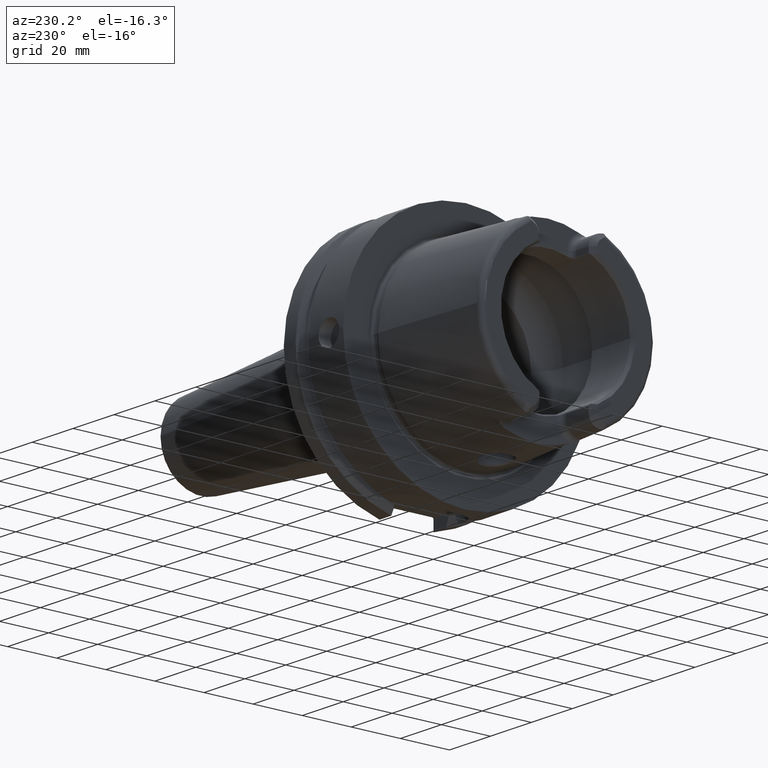
[diagram: clean part render]
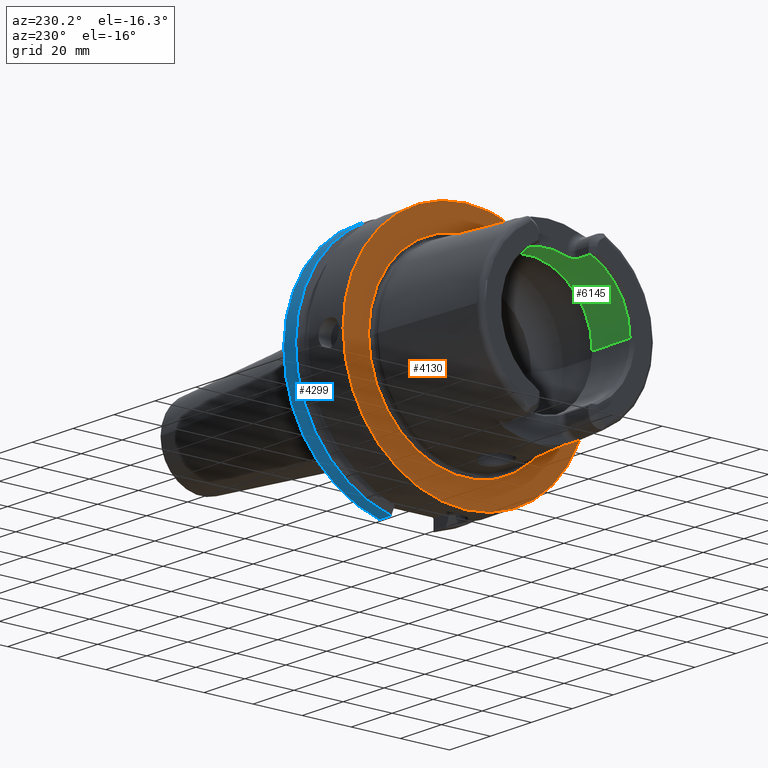
[diagram: same view with three faces highlighted in distinct colors, each labeled with its STEP entity id]
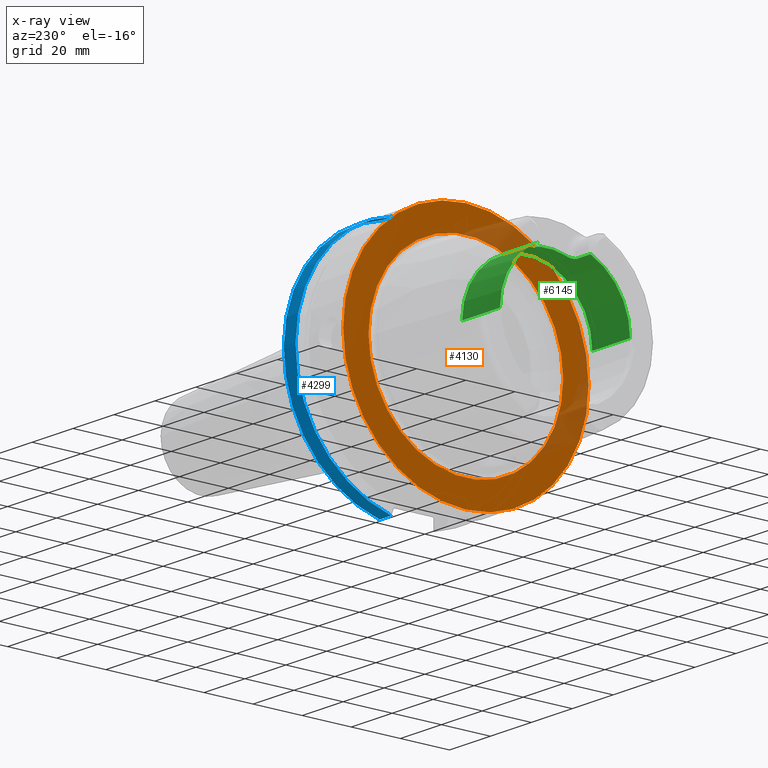
[diagram: x-ray of the same camera — body ghosted, the three highlighted faces saturated]
A machine part, auxiliary view with three faces highlighted in distinct colors.
The next image is the same camera in x-ray (body ghosted, the three faces saturated) — at least one of them is partly hidden behind the body in this view.
Their STEP definitions:

[orange] entity #4130 — the highlighted planar face has unit normal (1, 0, 0).
#905=CARTESIAN_POINT('',(2.842170943040E-14,0.E0,0.E0));
#906=DIRECTION('',(1.E0,0.E0,0.E0));
#907=DIRECTION('',(0.E0,1.E0,0.E0));
#908=AXIS2_PLACEMENT_3D('',#905,#906,#907);
#910=CARTESIAN_POINT('',(2.842170943040E-14,0.E0,0.E0));
#911=DIRECTION('',(-1.E0,0.E0,0.E0));
#912=DIRECTION('',(0.E0,1.E0,0.E0));
#913=AXIS2_PLACEMENT_3D('',#910,#911,#912);
#915=CARTESIAN_POINT('',(0.E0,0.E0,0.E0));
#916=DIRECTION('',(-1.E0,0.E0,0.E0));
#917=DIRECTION('',(0.E0,-1.E0,0.E0));
#918=AXIS2_PLACEMENT_3D('',#915,#916,#917);
#920=CARTESIAN_POINT('',(0.E0,0.E0,0.E0));
#921=DIRECTION('',(-1.E0,0.E0,0.E0));
#922=DIRECTION('',(0.E0,1.E0,0.E0));
#923=AXIS2_PLACEMENT_3D('',#920,#921,#922);
#2693=CARTESIAN_POINT('',(2.842170943040E-14,5.E1,0.E0));
#2694=CARTESIAN_POINT('',(2.842170943040E-14,-5.E1,0.E0));
#2695=VERTEX_POINT('',#2693);
#2696=VERTEX_POINT('',#2694);
#2721=CARTESIAN_POINT('',(0.E0,-3.963225E1,0.E0));
#2722=VERTEX_POINT('',#2721);
#2723=CARTESIAN_POINT('',(0.E0,3.963225E1,0.E0));
#2724=VERTEX_POINT('',#2723);
#4115=CARTESIAN_POINT('',(0.E0,0.E0,0.E0));
#4116=DIRECTION('',(1.E0,0.E0,0.E0));
#4117=DIRECTION('',(0.E0,-1.E0,0.E0));
#4118=AXIS2_PLACEMENT_3D('',#4115,#4116,#4117);
#4119=PLANE('',#4118);
#4121=ORIENTED_EDGE('',*,*,#4120,.T.);
#4123=ORIENTED_EDGE('',*,*,#4122,.F.);
#4124=EDGE_LOOP('',(#4121,#4123));
#4125=FACE_OUTER_BOUND('',#4124,.F.);
#4126=ORIENTED_EDGE('',*,*,#4110,.T.);
#4127=ORIENTED_EDGE('',*,*,#4094,.T.);
#4128=EDGE_LOOP('',(#4126,#4127));
#4129=FACE_BOUND('',#4128,.F.);
#4130=ADVANCED_FACE('',(#4125,#4129),#4119,.F.);
#909=CIRCLE('',#908,5.E1);
#914=CIRCLE('',#913,5.E1);
#919=CIRCLE('',#918,3.963225E1);
#924=CIRCLE('',#923,3.963225E1);
#4094=EDGE_CURVE('',#2724,#2722,#924,.T.);
#4110=EDGE_CURVE('',#2722,#2724,#919,.T.);
#4120=EDGE_CURVE('',#2695,#2696,#909,.T.);
#4122=EDGE_CURVE('',#2695,#2696,#914,.T.);

[blue] entity #4299 — the highlighted cylindrical surface (partial cylindrical patch) has radius 50 mm, axis along (1, 0, 0).
#1110=DIRECTION('',(1.E0,0.E0,0.E0));
#1111=VECTOR('',#1110,5.752404735808E0);
#1112=CARTESIAN_POINT('',(2.324759526419E1,1.1E1,-4.877499359303E1));
#1113=LINE('',#1112,#1111);
#1114=CARTESIAN_POINT('',(2.9E1,0.E0,0.E0));
#1115=DIRECTION('',(1.E0,0.E0,0.E0));
#1116=DIRECTION('',(0.E0,2.2E-1,-9.754998718606E-1));
#1117=AXIS2_PLACEMENT_3D('',#1114,#1115,#1116);
#1119=DIRECTION('',(1.E0,0.E0,0.E0));
#1120=VECTOR('',#1119,5.752404735808E0);
#1121=CARTESIAN_POINT('',(2.324759526419E1,1.E1,4.898979485566E1));
#1122=LINE('',#1121,#1120);
#1653=CARTESIAN_POINT('',(2.324759526419E1,0.E0,0.E0));
#1654=DIRECTION('',(1.E0,0.E0,0.E0));
#1655=DIRECTION('',(0.E0,2.2E-1,-9.754998718606E-1));
#1656=AXIS2_PLACEMENT_3D('',#1653,#1654,#1655);
#1663=CARTESIAN_POINT('',(2.324759526419E1,1.E1,4.898979485566E1));
#2989=VERTEX_POINT('',#1663);
#2998=CARTESIAN_POINT('',(2.324759526419E1,1.1E1,-4.877499359303E1));
#2999=CARTESIAN_POINT('',(2.9E1,1.1E1,-4.877499359303E1));
#3000=VERTEX_POINT('',#2998);
#3001=VERTEX_POINT('',#2999);
#3044=CARTESIAN_POINT('',(2.9E1,1.E1,4.898979485566E1));
#3045=VERTEX_POINT('',#3044);
#4285=CARTESIAN_POINT('',(-5.395E1,0.E0,0.E0));
#4286=DIRECTION('',(1.E0,0.E0,0.E0));
#4287=DIRECTION('',(0.E0,-1.E0,0.E0));
#4288=AXIS2_PLACEMENT_3D('',#4285,#4286,#4287);
#4289=CYLINDRICAL_SURFACE('',#4288,5.E1);
#4291=ORIENTED_EDGE('',*,*,#4290,.T.);
#4292=ORIENTED_EDGE('',*,*,#4234,.T.);
#4294=ORIENTED_EDGE('',*,*,#4293,.F.);
#4296=ORIENTED_EDGE('',*,*,#4295,.F.);
#4297=EDGE_LOOP('',(#4291,#4292,#4294,#4296));
#4298=FACE_OUTER_BOUND('',#4297,.F.);
#4299=ADVANCED_FACE('',(#4298),#4289,.T.);
#1118=CIRCLE('',#1117,5.E1);
#1657=CIRCLE('',#1656,5.E1);
#4234=EDGE_CURVE('',#3001,#3045,#1118,.T.);
#4290=EDGE_CURVE('',#3000,#3001,#1113,.T.);
#4293=EDGE_CURVE('',#2989,#3045,#1122,.T.);
#4295=EDGE_CURVE('',#3000,#2989,#1657,.T.);

[green] entity #6145 — the highlighted cylindrical surface (partial cylindrical patch) has radius 26.5 mm, axis along (1, 0, 0).
#165=CARTESIAN_POINT('',(-4.85E1,1.051E1,2.432673220965E1));
#167=CARTESIAN_POINT('',(-4.85E1,0.E0,0.E0));
#168=DIRECTION('',(1.E0,0.E0,0.E0));
#169=DIRECTION('',(0.E0,1.E0,0.E0));
#170=AXIS2_PLACEMENT_3D('',#167,#168,#169);
#187=CARTESIAN_POINT('',(-4.85E1,0.E0,0.E0));
#188=DIRECTION('',(1.E0,0.E0,0.E0));
#189=DIRECTION('',(0.E0,-3.966037735849E-1,9.179898947038E-1));
#190=AXIS2_PLACEMENT_3D('',#187,#188,#189);
#192=CARTESIAN_POINT('',(-4.85E1,-1.051E1,2.432673220965E1));
#513=DIRECTION('',(-1.E0,0.E0,0.E0));
#514=VECTOR('',#513,1.849662432703E1);
#515=CARTESIAN_POINT('',(-3.000337567297E1,2.65E1,0.E0));
#516=LINE('',#515,#514);
#522=DIRECTION('',(-1.E0,0.E0,0.E0));
#523=VECTOR('',#522,1.849662432703E1);
#524=CARTESIAN_POINT('',(-3.000337567297E1,-2.65E1,0.E0));
#525=LINE('',#524,#523);
#2476=DIRECTION('',(1.E0,0.E0,0.E0));
#2477=VECTOR('',#2476,6.380229667746E0);
#2478=CARTESIAN_POINT('',(-4.838022966775E1,1.039022966775E1,2.437812805470E1));
#2479=LINE('',#2478,#2477);
#2480=CARTESIAN_POINT('',(-3.971132486541E1,8.01E0,2.526044140549E1));
#2481=CARTESIAN_POINT('',(-3.970878365387E1,8.120563234658E0,2.522538218006E1));
#2482=CARTESIAN_POINT('',(-3.971906599640E1,8.340498761E0,2.515406323082E1));
#2483=CARTESIAN_POINT('',(-3.978267622202E1,8.672586520936E0,2.504149237513E1));
#2484=CARTESIAN_POINT('',(-3.989268945815E1,8.989467647893E0,2.492938353432E1));
#2485=CARTESIAN_POINT('',(-4.004052322956E1,9.277750297847E0,2.482340953473E1));
#2486=CARTESIAN_POINT('',(-4.022199090024E1,9.537479373845E0,2.472468297046E1));
#2487=CARTESIAN_POINT('',(-4.043924040036E1,9.773195748073E0,2.463237051391E1));
#2488=CARTESIAN_POINT('',(-4.069196362011E1,9.980705213938E0,2.454892857931E1));
#2489=CARTESIAN_POINT('',(-4.098453186625E1,1.015759575717E1,2.447617541728E1));
#2490=CARTESIAN_POINT('',(-4.132143240488E1,1.029570459017E1,2.441829554688E1));
#2491=CARTESIAN_POINT('',(-4.167918985613E1,1.037618705973E1,2.438412368561E1));
#2492=CARTESIAN_POINT('',(-4.189481839478E1,1.039022966775E1,2.437812805470E1));
#2493=CARTESIAN_POINT('',(-4.2E1,1.039022966775E1,2.437812805470E1));
#2495=CARTESIAN_POINT('',(-3.971132486541E1,-8.01E0,2.526044140549E1));
#2496=CARTESIAN_POINT('',(-3.971132486541E1,-7.271271578955E0,
2.549468967366E1));
#2497=CARTESIAN_POINT('',(-3.971132486546E1,-5.773250992792E0,
2.589833317849E1));
#2498=CARTESIAN_POINT('',(-3.971132486544E1,-3.481810319461E0,
2.630458298809E1));
#2499=CARTESIAN_POINT('',(-3.971132486544E1,-1.163586982585E0,
2.650849211583E1));
#2500=CARTESIAN_POINT('',(-3.971132486544E1,1.163586982585E0,2.650849211583E1));
#2501=CARTESIAN_POINT('',(-3.971132486544E1,3.481810319461E0,2.630458298809E1));
#2502=CARTESIAN_POINT('',(-3.971132486546E1,5.773250992791E0,2.589833317849E1));
#2503=CARTESIAN_POINT('',(-3.971132486541E1,7.271271578958E0,2.549468967366E1));
#2504=CARTESIAN_POINT('',(-3.971132486541E1,8.01E0,2.526044140549E1));
#2506=CARTESIAN_POINT('',(-4.2E1,-1.039022966775E1,2.437812805470E1));
#2507=CARTESIAN_POINT('',(-4.189375760304E1,-1.039022966775E1,
2.437812805470E1));
#2508=CARTESIAN_POINT('',(-4.167635124759E1,-1.037592175927E1,
2.438423721529E1));
#2509=CARTESIAN_POINT('',(-4.131623052643E1,-1.029415408513E1,
2.441895189414E1));
#2510=CARTESIAN_POINT('',(-4.097947032639E1,-1.015497495082E1,
2.447726388108E1));
#2511=CARTESIAN_POINT('',(-4.068903934051E1,-9.978495762119E0,
2.454982411868E1));
#2512=CARTESIAN_POINT('',(-4.043805179144E1,-9.771970406757E0,
2.463285308238E1));
#2513=CARTESIAN_POINT('',(-4.022178538202E1,-9.537157318169E0,
2.472480442904E1));
#2514=CARTESIAN_POINT('',(-4.004048499348E1,-9.277715471543E0,
2.482342368645E1));
#2515=CARTESIAN_POINT('',(-3.989237648633E1,-8.988811706632E0,
2.492962282131E1));
#2516=CARTESIAN_POINT('',(-3.978230284625E1,-8.671343229942E0,
2.504192722240E1));
#2517=CARTESIAN_POINT('',(-3.971884880625E1,-8.338547582645E0,
2.515470883480E1));
#2518=CARTESIAN_POINT('',(-3.970880260289E1,-8.119738798873E0,
2.522564360584E1));
#2519=CARTESIAN_POINT('',(-3.971132486541E1,-8.01E0,2.526044140549E1));
#2521=DIRECTION('',(1.E0,0.E0,0.E0));
#2522=VECTOR('',#2521,6.380229667746E0);
#2523=CARTESIAN_POINT('',(-4.838022966775E1,-1.039022966775E1,
2.437812805470E1));
#2524=LINE('',#2523,#2522);
#2525=CARTESIAN_POINT('',(-4.838022966775E1,-1.039022966775E1,
2.437812805470E1));
#2526=CARTESIAN_POINT('',(-4.842017594144E1,-1.043017594144E1,
2.436110250799E1));
#2527=CARTESIAN_POINT('',(-4.846009940760E1,-1.047009940760E1,
2.434397066250E1));
#2528=CARTESIAN_POINT('',(-4.85E1,-1.051E1,2.432673220965E1));
#2530=CARTESIAN_POINT('',(-3.000337567297E1,0.E0,0.E0));
#2531=DIRECTION('',(1.E0,0.E0,0.E0));
#2532=DIRECTION('',(0.E0,1.E0,0.E0));
#2533=AXIS2_PLACEMENT_3D('',#2530,#2531,#2532);
#2535=CARTESIAN_POINT('',(-4.85E1,1.051E1,2.432673220965E1));
#2536=CARTESIAN_POINT('',(-4.846009940760E1,1.047009940760E1,2.434397066250E1));
#2537=CARTESIAN_POINT('',(-4.842017594144E1,1.043017594144E1,2.436110250799E1));
#2538=CARTESIAN_POINT('',(-4.838022966775E1,1.039022966775E1,2.437812805470E1));
#2741=CARTESIAN_POINT('',(-3.000337567297E1,2.65E1,0.E0));
#2742=VERTEX_POINT('',#2741);
#2743=CARTESIAN_POINT('',(-4.85E1,2.65E1,0.E0));
#2744=VERTEX_POINT('',#2743);
#2753=CARTESIAN_POINT('',(-3.000337567297E1,-2.65E1,0.E0));
#2754=VERTEX_POINT('',#2753);
#2755=CARTESIAN_POINT('',(-4.85E1,-2.65E1,0.E0));
#2756=VERTEX_POINT('',#2755);
#2797=VERTEX_POINT('',#165);
#2812=VERTEX_POINT('',#192);
#2825=CARTESIAN_POINT('',(-4.2E1,1.039022966775E1,2.437812805470E1));
#2826=VERTEX_POINT('',#2825);
#2827=CARTESIAN_POINT('',(-3.971132486541E1,8.01E0,2.526044140549E1));
#2828=VERTEX_POINT('',#2827);
#2829=CARTESIAN_POINT('',(-4.2E1,-1.039022966775E1,2.437812805470E1));
#2830=VERTEX_POINT('',#2829);
#2831=CARTESIAN_POINT('',(-3.971132486541E1,-8.01E0,2.526044140549E1));
#2832=VERTEX_POINT('',#2831);
#2833=CARTESIAN_POINT('',(-4.838022966775E1,1.039022966775E1,2.437812805470E1));
#2834=VERTEX_POINT('',#2833);
#2835=CARTESIAN_POINT('',(-4.838022966775E1,-1.039022966775E1,
2.437812805470E1));
#2836=VERTEX_POINT('',#2835);
#6121=CARTESIAN_POINT('',(-5.3125E1,0.E0,0.E0));
#6122=DIRECTION('',(1.E0,0.E0,0.E0));
#6123=DIRECTION('',(0.E0,-1.E0,0.E0));
#6124=AXIS2_PLACEMENT_3D('',#6121,#6122,#6123);
#6125=CYLINDRICAL_SURFACE('',#6124,2.65E1);
#6126=ORIENTED_EDGE('',*,*,#3351,.T.);
#6128=ORIENTED_EDGE('',*,*,#6127,.F.);
#6130=ORIENTED_EDGE('',*,*,#6129,.F.);
#6132=ORIENTED_EDGE('',*,*,#6131,.F.);
#6134=ORIENTED_EDGE('',*,*,#6133,.F.);
#6136=ORIENTED_EDGE('',*,*,#6135,.T.);
#6137=ORIENTED_EDGE('',*,*,#3316,.T.);
#6138=ORIENTED_EDGE('',*,*,#3578,.F.);
#6139=ORIENTED_EDGE('',*,*,#6101,.F.);
#6140=ORIENTED_EDGE('',*,*,#3574,.T.);
#6141=ORIENTED_EDGE('',*,*,#3300,.T.);
#6142=ORIENTED_EDGE('',*,*,#3331,.T.);
#6143=EDGE_LOOP('',(#6126,#6128,#6130,#6132,#6134,#6136,#6137,#6138,#6139,#6140,
#6141,#6142));
#6144=FACE_OUTER_BOUND('',#6143,.F.);
#6145=ADVANCED_FACE('',(#6144),#6125,.F.);
#171=CIRCLE('',#170,2.65E1);
#191=CIRCLE('',#190,2.65E1);
#2494=B_SPLINE_CURVE_WITH_KNOTS('',3,(#2480,#2481,#2482,#2483,#2484,#2485,#2486,
#2487,#2488,#2489,#2490,#2491,#2492,#2493),.UNSPECIFIED.,.F.,.F.,(4,1,1,1,1,1,1,
1,1,1,1,4),(0.E0,9.090909090909E-2,1.818181818182E-1,2.727272727273E-1,
3.636363636364E-1,4.545454545455E-1,5.454545454545E-1,6.363636363636E-1,
7.272727272727E-1,8.181818181818E-1,9.090909090909E-1,1.E0),.UNSPECIFIED.);
#2505=B_SPLINE_CURVE_WITH_KNOTS('',3,(#2495,#2496,#2497,#2498,#2499,#2500,#2501,
#2502,#2503,#2504),.UNSPECIFIED.,.F.,.F.,(4,1,1,1,1,1,1,4),(0.E0,
1.428571428571E-1,2.857142857143E-1,4.285714285714E-1,5.714285714286E-1,
7.142857142857E-1,8.571428571429E-1,1.E0),.UNSPECIFIED.);
#2520=B_SPLINE_CURVE_WITH_KNOTS('',3,(#2506,#2507,#2508,#2509,#2510,#2511,#2512,
#2513,#2514,#2515,#2516,#2517,#2518,#2519),.UNSPECIFIED.,.F.,.F.,(4,1,1,1,1,1,1,
1,1,1,1,4),(0.E0,9.090909090909E-2,1.818181818182E-1,2.727272727273E-1,
3.636363636364E-1,4.545454545455E-1,5.454545454545E-1,6.363636363636E-1,
7.272727272727E-1,8.181818181818E-1,9.090909090909E-1,1.E0),.UNSPECIFIED.);
#2529=B_SPLINE_CURVE_WITH_KNOTS('',3,(#2525,#2526,#2527,#2528),.UNSPECIFIED.,
.F.,.F.,(4,4),(0.E0,1.E0),.UNSPECIFIED.);
#2534=CIRCLE('',#2533,2.65E1);
#2539=B_SPLINE_CURVE_WITH_KNOTS('',3,(#2535,#2536,#2537,#2538),.UNSPECIFIED.,
.F.,.F.,(4,4),(0.E0,1.E0),.UNSPECIFIED.);
#3300=EDGE_CURVE('',#2744,#2797,#171,.T.);
#3316=EDGE_CURVE('',#2812,#2756,#191,.T.);
#3331=EDGE_CURVE('',#2797,#2834,#2539,.T.);
#3351=EDGE_CURVE('',#2834,#2826,#2479,.T.);
#3574=EDGE_CURVE('',#2742,#2744,#516,.T.);
#3578=EDGE_CURVE('',#2754,#2756,#525,.T.);
#6101=EDGE_CURVE('',#2742,#2754,#2534,.T.);
#6127=EDGE_CURVE('',#2828,#2826,#2494,.T.);
#6129=EDGE_CURVE('',#2832,#2828,#2505,.T.);
#6131=EDGE_CURVE('',#2830,#2832,#2520,.T.);
#6133=EDGE_CURVE('',#2836,#2830,#2524,.T.);
#6135=EDGE_CURVE('',#2836,#2812,#2529,.T.);